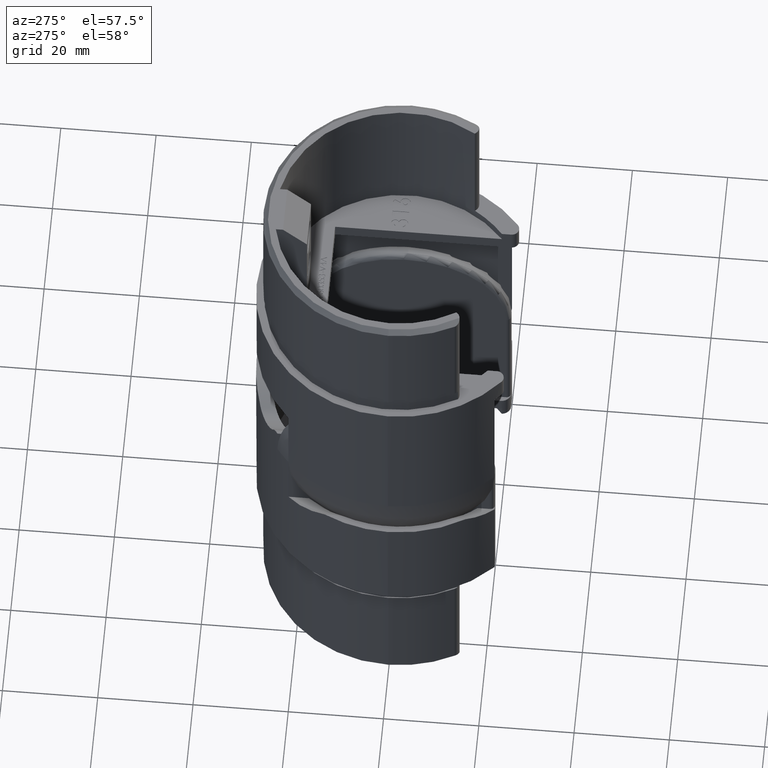
[diagram: clean part render]
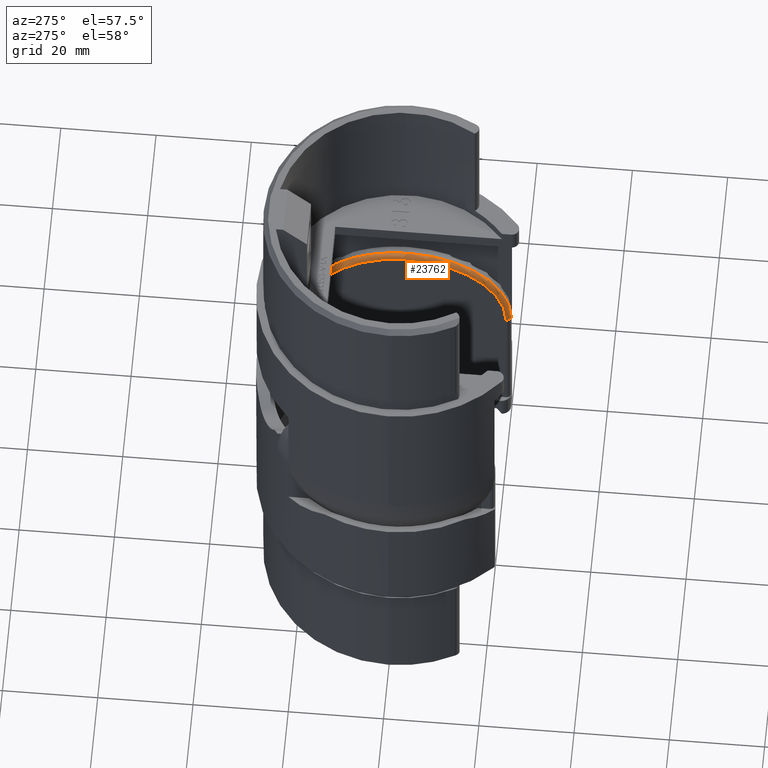
[diagram: same view with one face highlighted and labeled with its STEP entity id]
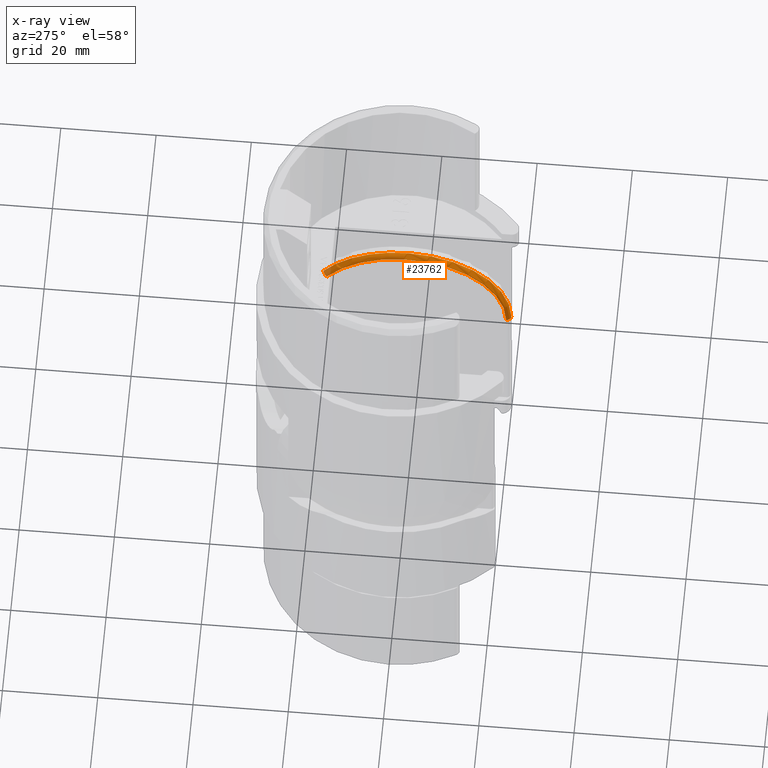
[diagram: x-ray of the same camera — body ghosted, the highlighted face saturated]
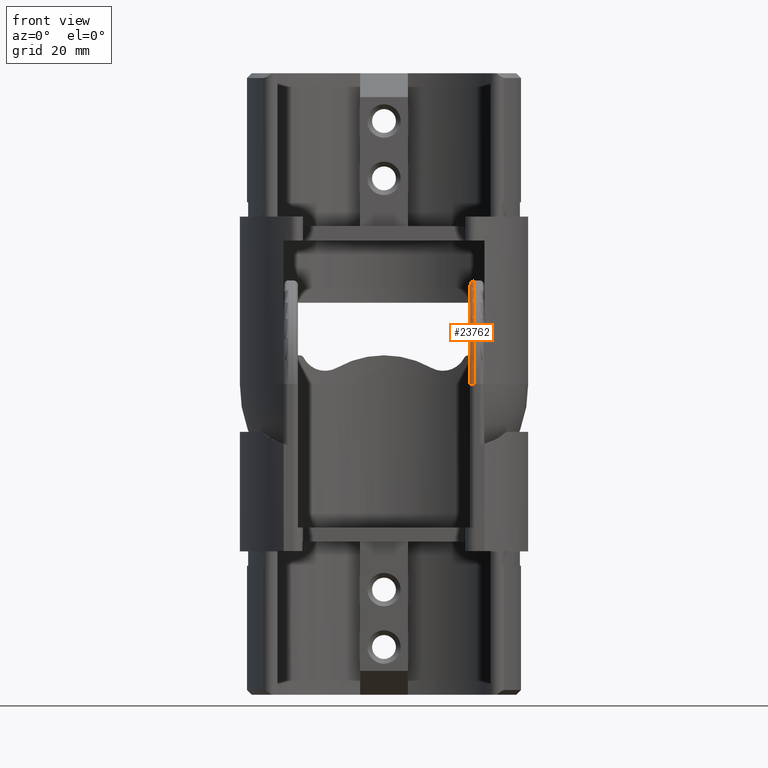
[diagram: same view with one face highlighted and labeled with its STEP entity id]
A machine part, auxiliary view. The second image highlights one B-rep face of the part: STEP entity #23762.
The next image is the same camera in x-ray: the body ghosted, the highlighted face saturated — about 4% of this face is hidden behind the body in this view.
A second angle (front view) of the same face is appended — the face is thin or edge-on in the first view.
In plain terms, the highlighted toroidal blend (fillet) surface has major radius 20.65 mm and minor (blend) radius 1 mm.
Its self-contained STEP definition (entity closure, byte-faithful):
#343 = VERTEX_POINT ( 'NONE', #12913 ) ;
#860 = CARTESIAN_POINT ( 'NONE',  ( -19.00000000000000355, -20.64999999999999858, -33.00000000000000000 ) ) ;
#929 = DIRECTION ( 'NONE',  ( -1.000000000000000000, 0.000000000000000000, 0.000000000000000000 ) ) ;
#1415 = VERTEX_POINT ( 'NONE', #4619 ) ;
#1788 = DIRECTION ( 'NONE',  ( -1.000000000000000000, 0.000000000000000000, 0.000000000000000000 ) ) ;
#2092 = AXIS2_PLACEMENT_3D ( 'NONE', #26049, #16942, #7778 ) ;
#3484 = DIRECTION ( 'NONE',  ( 1.000000000000000000, 0.000000000000000000, 0.000000000000000000 ) ) ;
#3654 = CARTESIAN_POINT ( 'NONE',  ( -18.74079686923077048, 17.71398666416640211, -45.40346699399571406 ) ) ;
#3717 = EDGE_CURVE ( 'NONE', #14036, #6727, #27744, .T. ) ;
#3806 = CARTESIAN_POINT ( 'NONE',  ( -19.00000000000000355, -21.64999999999999147, -33.00000000000000000 ) ) ;
#4342 = ORIENTED_EDGE ( 'NONE', *, *, #15629, .F. ) ;
#4619 = CARTESIAN_POINT ( 'NONE',  ( -18.61887323557357732, 17.67281444808023849, -45.37463789792737145 ) ) ;
#5290 = DIRECTION ( 'NONE',  ( -6.938893903907220489E-15, 0.8191520442889883569, -0.5735764363510511554 ) ) ;
#5494 = DIRECTION ( 'NONE',  ( 0.000000000000000000, 0.000000000000000000, 1.000000000000000000 ) ) ;
#6491 = CIRCLE ( 'NONE', #21486, 21.64999999999999858 ) ;
#6727 = VERTEX_POINT ( 'NONE', #13442 ) ;
#6872 = CARTESIAN_POINT ( 'NONE',  ( -19.00000000000000355, 0.000000000000000000, -33.00000000000000000 ) ) ;
#6932 = EDGE_CURVE ( 'NONE', #343, #1415, #14613, .T. ) ;
#7508 = AXIS2_PLACEMENT_3D ( 'NONE', #860, #26360, #3484 ) ;
#7778 = DIRECTION ( 'NONE',  ( 0.000000000000000000, 0.000000000000000000, 1.000000000000000000 ) ) ;
#8149 = AXIS2_PLACEMENT_3D ( 'NONE', #18549, #14386, #5290 ) ;
#8429 = FACE_OUTER_BOUND ( 'NONE', #27041, .T. ) ;
#8738 = VERTEX_POINT ( 'NONE', #23670 ) ;
#8837 = ORIENTED_EDGE ( 'NONE', *, *, #17915, .F. ) ;
#9618 = DIRECTION ( 'NONE',  ( 1.000000000000000000, -0.000000000000000000, -0.000000000000000000 ) ) ;
#11120 = ORIENTED_EDGE ( 'NONE', *, *, #3717, .F. ) ;
#12776 = CARTESIAN_POINT ( 'NONE',  ( -19.00000000000000355, 17.75168509540401729, -45.39355381936960043 ) ) ;
#12913 = CARTESIAN_POINT ( 'NONE',  ( -18.00000000000000355, 16.91548971456762729, -44.84435341064916258 ) ) ;
#13442 = CARTESIAN_POINT ( 'NONE',  ( -18.00000000000000355, -20.64999999999999858, -33.00000000000000000 ) ) ;
#13904 = TOROIDAL_SURFACE ( 'NONE', #2092, 20.64999999999999858, 1.000000000000000000 ) ;
#14036 = VERTEX_POINT ( 'NONE', #3806 ) ;
#14386 = DIRECTION ( 'NONE',  ( 0.000000000000000000, 0.5735764363510497121, 0.8191520442889893561 ) ) ;
#14613 = CIRCLE ( 'NONE', #8149, 1.000000000000001110 ) ;
#15315 = CARTESIAN_POINT ( 'NONE',  ( -19.00000000000000355, 17.75168509540401729, -45.39355381936960043 ) ) ;
#15629 = EDGE_CURVE ( 'NONE', #6727, #343, #24765, .T. ) ;
#16842 = AXIS2_PLACEMENT_3D ( 'NONE', #6872, #1788, #27486 ) ;
#16942 = DIRECTION ( 'NONE',  ( -1.000000000000000000, 0.000000000000000000, 0.000000000000000000 ) ) ;
#17421 = CARTESIAN_POINT ( 'NONE',  ( -19.00000000000000355, 0.000000000000000000, -33.00000000000000000 ) ) ;
#17915 = EDGE_CURVE ( 'NONE', #8738, #14036, #18585, .T. ) ;
#18011 = ORIENTED_EDGE ( 'NONE', *, *, #6932, .F. ) ;
#18248 = EDGE_CURVE ( 'NONE', #28774, #8738, #6491, .T. ) ;
#18549 = CARTESIAN_POINT ( 'NONE',  ( -19.00000000000000355, 16.91548971456763084, -44.84435341064917679 ) ) ;
#18585 = CIRCLE ( 'NONE', #16842, 21.64999999999999858 ) ;
#19194 = DIRECTION ( 'NONE',  ( 0.000000000000000000, 8.881784197001252323E-16, 1.000000000000000000 ) ) ;
#19739 = AXIS2_PLACEMENT_3D ( 'NONE', #23508, #9618, #19194 ) ;
#21486 = AXIS2_PLACEMENT_3D ( 'NONE', #17421, #929, #5494 ) ;
#23508 = CARTESIAN_POINT ( 'NONE',  ( -18.00000000000000355, 0.000000000000000000, -33.00000000000000000 ) ) ;
#23670 = CARTESIAN_POINT ( 'NONE',  ( -19.00000000000000355, 0.000000000000000000, -54.65000000000000568 ) ) ;
#23762 = ADVANCED_FACE ( 'NONE', ( #8429 ), #13904, .T. ) ;
#24765 = CIRCLE ( 'NONE', #19739, 20.64999999999999858 ) ;
#26049 = CARTESIAN_POINT ( 'NONE',  ( -19.00000000000000355, 0.000000000000000000, -33.00000000000000000 ) ) ;
#26320 = ORIENTED_EDGE ( 'NONE', *, *, #29275, .T. ) ;
#26360 = DIRECTION ( 'NONE',  ( -0.000000000000000000, 0.000000000000000000, 1.000000000000000000 ) ) ;
#26741 = CARTESIAN_POINT ( 'NONE',  ( -18.86932609839078978, 17.74204040866663945, -45.40736821387670830 ) ) ;
#26986 = ORIENTED_EDGE ( 'NONE', *, *, #18248, .F. ) ;
#27041 = EDGE_LOOP ( 'NONE', ( #18011, #4342, #11120, #8837, #26986, #26320 ) ) ;
#27486 = DIRECTION ( 'NONE',  ( 0.000000000000000000, 0.000000000000000000, 1.000000000000000000 ) ) ;
#27744 = CIRCLE ( 'NONE', #7508, 1.000000000000000888 ) ;
#28774 = VERTEX_POINT ( 'NONE', #12776 ) ;
#29086 = CARTESIAN_POINT ( 'NONE',  ( -18.61887323557357732, 17.67281444808023849, -45.37463789792737145 ) ) ;
#29275 = EDGE_CURVE ( 'NONE', #28774, #1415, #30014, .T. ) ;
#30014 = B_SPLINE_CURVE_WITH_KNOTS ( 'NONE', 3,
 ( #15315, #26741, #3654, #29086 ),
 .UNSPECIFIED., .F., .F.,
 ( 4, 4 ),
 ( 0.000000000000000000, 0.0003899522705554120546 ),
 .UNSPECIFIED. ) ;